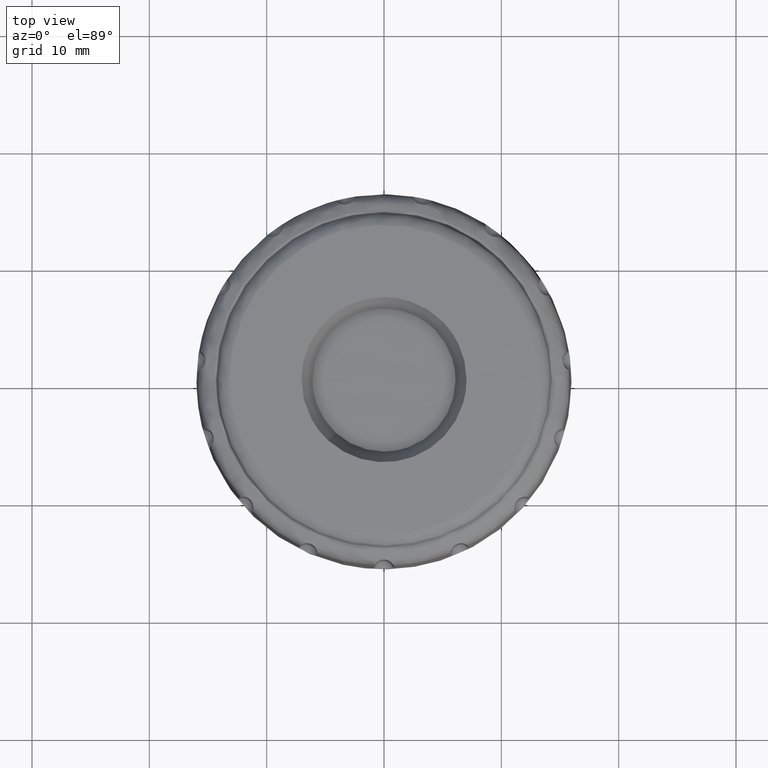
[diagram: clean part render]
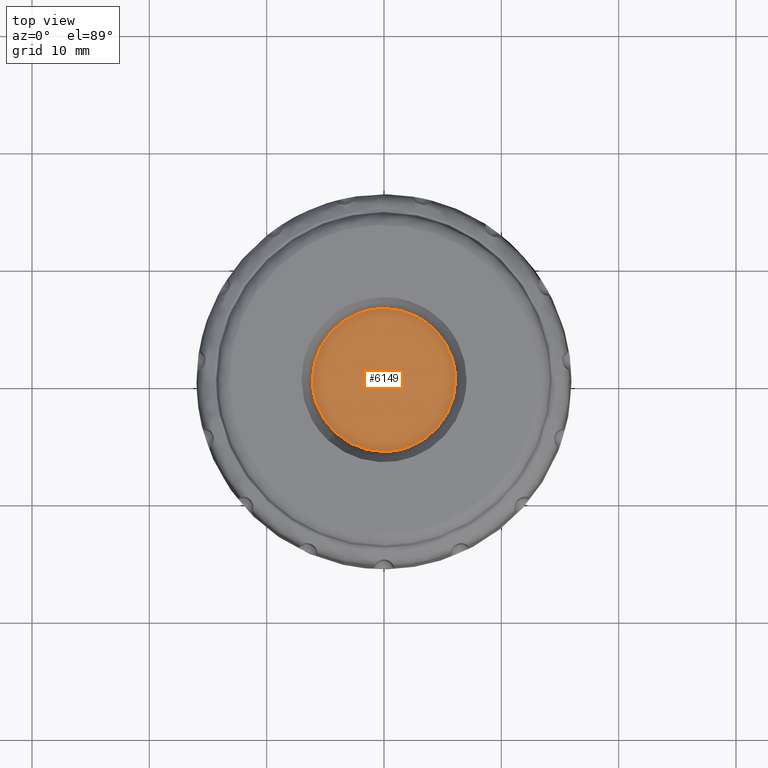
[diagram: same view with one face highlighted and labeled with its STEP entity id]
A machine part, top view. The second image highlights one B-rep face of the part: STEP entity #6149.
In plain terms, the highlighted face is a freeform B-spline surface patch.
Its self-contained STEP definition (entity closure, byte-faithful):
#996=CARTESIAN_POINT('',(0.000000544732082,6.099999999999977,16.0));
#997=VERTEX_POINT('',#996);
#998=CARTESIAN_POINT('',(4.371571046610871,4.254335266510307,16.000000053344341));
#999=VERTEX_POINT('',#998);
#1000=CARTESIAN_POINT('',(0.000000544732082,6.099999999999977,16.0));
#1001=CARTESIAN_POINT('',(0.317306817955240,6.100017396246842,16.000000003871978));
#1002=CARTESIAN_POINT('',(0.977300971990490,6.048395578612732,16.000000011925529));
#1003=CARTESIAN_POINT('',(2.028880118336133,5.790746509621759,16.000000024757540));
#1004=CARTESIAN_POINT('',(2.934533801225861,5.378048041231075,16.000000035808839));
#1005=CARTESIAN_POINT('',(3.739045089724609,4.843075371251124,16.000000045625821));
#1006=CARTESIAN_POINT('',(4.150285624364259,4.481748081975704,16.000000050644189));
#1007=CARTESIAN_POINT('',(4.371571046610871,4.254335266510307,16.000000053344341));
#1008=B_SPLINE_CURVE_WITH_KNOTS('',3,(#1000,#1001,#1002,#1003,#1004,#1005,#1006,#1007),.UNSPECIFIED.,.F.,.U.,(4,1,1,1,1,4),(7.069521E-009,0.951919351928479,1.979997152454806,3.236530785587537,3.921917649105443,4.873836993968570),.UNSPECIFIED.);
#1009=EDGE_CURVE('',#997,#999,#1008,.T.);
#1064=CARTESIAN_POINT('',(-4.121100375471980,-4.497391873512335,16.000000053160989));
#1065=VERTEX_POINT('',#1064);
#1071=CARTESIAN_POINT('',(-6.100000000000001,0.0,16.0));
#1072=VERTEX_POINT('',#1071);
#1073=CARTESIAN_POINT('',(-4.121100375471980,-4.497391873512335,16.000000053160989));
#1074=CARTESIAN_POINT('',(-4.451286150794746,-4.194942100465733,16.000000049585910));
#1075=CARTESIAN_POINT('',(-4.939819312073575,-3.636513539489959,16.000000042985061));
#1076=CARTESIAN_POINT('',(-5.528013990667348,-2.649867034743668,16.000000031322411));
#1077=CARTESIAN_POINT('',(-5.845349873799461,-1.821790940317680,16.000000021534550));
#1078=CARTESIAN_POINT('',(-6.052638108695825,-0.895513463536085,16.000000010585119));
#1079=CARTESIAN_POINT('',(-6.100036943719201,-0.355579314394943,16.000000004203230));
#1080=CARTESIAN_POINT('',(-6.100000000000001,0.0,16.0));
#1081=B_SPLINE_CURVE_WITH_KNOTS('',3,(#1073,#1074,#1075,#1076,#1077,#1078,#1079,#1080),.UNSPECIFIED.,.F.,.U.,(4,1,1,1,1,4),(7.481709E-009,1.343292821893735,2.212483516270661,3.437247619037943,3.990369689342958,5.057100413576769),.UNSPECIFIED.);
#1082=EDGE_CURVE('',#1065,#1072,#1081,.T.);
#1084=CARTESIAN_POINT('',(-6.100000000000001,0.0,16.0));
#1085=CARTESIAN_POINT('',(-6.100066120302413,0.424201010150989,16.000000000000039));
#1086=CARTESIAN_POINT('',(-6.033349294765704,1.060465092081808,15.999999999999959));
#1087=CARTESIAN_POINT('',(-5.801396340264795,1.929569038616459,16.000000000000039));
#1088=CARTESIAN_POINT('',(-5.474380560533725,2.754815936909075,16.000000000000028));
#1089=CARTESIAN_POINT('',(-5.020775163868374,3.506356827088278,15.999999999999901));
#1090=CARTESIAN_POINT('',(-4.445919662796353,4.198049119633654,16.000000000000110));
#1091=CARTESIAN_POINT('',(-3.946261361850772,4.670857348886780,15.999999999999980));
#1092=CARTESIAN_POINT('',(-3.253982643129390,5.184319166683569,16.000000000000110));
#1093=CARTESIAN_POINT('',(-2.483045981960314,5.602500393270598,15.999999999999989));
#1094=CARTESIAN_POINT('',(-1.678603141910490,5.879209479135122,16.000000000000050));
#1095=CARTESIAN_POINT('',(-0.873334105508828,6.054855584259400,15.999999999999901));
#1096=CARTESIAN_POINT('',(-0.349338842669102,6.100032576835511,16.000000000000089));
#1097=CARTESIAN_POINT('',(0.000000544732082,6.099999999999977,16.0));
#1098=B_SPLINE_CURVE_WITH_KNOTS('',3,(#1084,#1085,#1086,#1087,#1088,#1089,#1090,#1091,#1092,#1093,#1094,#1095,#1096,#1097),.UNSPECIFIED.,.F.,.U.,(4,1,1,1,1,1,1,1,1,1,1,4),(0.000000025952641,1.272584654546279,1.908888152187478,2.694902549736099,3.930075003582942,4.528937153222035,5.389793103503590,5.988661937849136,7.111545831382668,8.009849057533202,8.533860651899110,9.581872931623693),.UNSPECIFIED.);
#1099=EDGE_CURVE('',#1072,#997,#1098,.T.);
#1122=CARTESIAN_POINT('',(6.100000000000001,0.0,16.0));
#1123=VERTEX_POINT('',#1122);
#1124=CARTESIAN_POINT('',(4.371571046610871,4.254335266510307,16.000000053344341));
#1125=CARTESIAN_POINT('',(4.619570866755620,3.999548993894480,16.000000050149609));
#1126=CARTESIAN_POINT('',(5.016337445822252,3.513179626198007,16.000000044051131));
#1127=CARTESIAN_POINT('',(5.507596106861514,2.675953752669788,16.000000033553299));
#1128=CARTESIAN_POINT('',(5.845220949317996,1.830351690585885,16.000000022950498));
#1129=CARTESIAN_POINT('',(6.054624983376892,0.907273413522948,16.000000011376070));
#1130=CARTESIAN_POINT('',(6.100016687207049,0.306512936313879,16.000000003843439));
#1131=CARTESIAN_POINT('',(6.100000000000001,0.0,16.0));
#1132=B_SPLINE_CURVE_WITH_KNOTS('',3,(#1124,#1125,#1126,#1127,#1128,#1129,#1130,#1131),.UNSPECIFIED.,.F.,.U.,(4,1,1,1,1,4),(6.332686E-009,1.066663591305887,1.875862225732087,2.905736024943709,3.788497578508151,4.708035226571100),.UNSPECIFIED.);
#1133=EDGE_CURVE('',#999,#1123,#1132,.T.);
#1135=CARTESIAN_POINT('',(-0.000000544732168,-6.099999999999976,16.0));
#1136=VERTEX_POINT('',#1135);
#1137=CARTESIAN_POINT('',(6.100000000000001,0.0,16.0));
#1138=CARTESIAN_POINT('',(6.100102830047706,-0.486588747884284,16.000000000000011));
#1139=CARTESIAN_POINT('',(6.006935927685975,-1.260061444262342,16.000000000000021));
#1140=CARTESIAN_POINT('',(5.659846769013012,-2.344046472241251,15.999999999999980));
#1141=CARTESIAN_POINT('',(5.246227822145024,-3.159531172287847,16.000000000000270));
#1142=CARTESIAN_POINT('',(4.684677068447688,-3.941455419717862,15.999999999999909));
#1143=CARTESIAN_POINT('',(3.961328050681485,-4.687448250585676,15.999999999999879));
#1144=CARTESIAN_POINT('',(3.097679006606329,-5.291714135957634,16.000000000000149));
#1145=CARTESIAN_POINT('',(2.088674816006703,-5.761368321569910,16.000000000000242));
#1146=CARTESIAN_POINT('',(1.097920859023283,-6.035555961001839,15.999999999999680));
#1147=CARTESIAN_POINT('',(0.349335705349788,-6.100019372767827,16.0));
#1148=CARTESIAN_POINT('',(-0.000000544732168,-6.099999999999976,16.0));
#1149=B_SPLINE_CURVE_WITH_KNOTS('',3,(#1137,#1138,#1139,#1140,#1141,#1142,#1143,#1144,#1145,#1146,#1147,#1148),.UNSPECIFIED.,.F.,.U.,(4,1,1,1,1,1,1,1,1,4),(0.000000025967228,1.459733407121396,2.320609559524785,3.406062999268243,4.192080385396681,5.202644037815333,6.512674665506825,7.336122254547909,8.533860651900385,9.581872931623702),.UNSPECIFIED.);
#1150=EDGE_CURVE('',#1123,#1136,#1149,.T.);
#1152=CARTESIAN_POINT('',(-0.000000544732168,-6.099999999999976,16.0));
#1153=CARTESIAN_POINT('',(-0.353499382698060,-6.100032131203918,16.000000004560029));
#1154=CARTESIAN_POINT('',(-0.977999380046692,-6.045550931745984,16.000000012615910));
#1155=CARTESIAN_POINT('',(-1.964392287855730,-5.803677476992683,16.000000025340078));
#1156=CARTESIAN_POINT('',(-3.031636869039743,-5.349037360266875,16.000000039107402));
#1157=CARTESIAN_POINT('',(-3.756288738074190,-4.831817886965549,16.000000048454972));
#1158=CARTESIAN_POINT('',(-4.121100375471980,-4.497391873512335,16.000000053160989));
#1159=B_SPLINE_CURVE_WITH_KNOTS('',3,(#1152,#1153,#1154,#1155,#1156,#1157,#1158),.UNSPECIFIED.,.F.,.U.,(4,1,1,1,4),(5.528865E-009,1.060493100632101,1.873539619232859,3.040080728352191,4.524771932197515),.UNSPECIFIED.);
#1160=EDGE_CURVE('',#1136,#1065,#1159,.T.);
#6136=CARTESIAN_POINT('',(-6.709389861829163,-6.709389861829134,16.0));
#6137=CARTESIAN_POINT('',(6.709390298135160,-6.709389861829134,16.0));
#6138=CARTESIAN_POINT('',(-6.709389861829163,6.709390298135134,16.0));
#6139=CARTESIAN_POINT('',(6.709390298135160,6.709390298135134,16.0));
#6140=B_SPLINE_SURFACE_WITH_KNOTS('',1,1,((#6136,#6138),(#6137,#6139)),.UNSPECIFIED.,.F.,.F.,.U.,(2,2),(2,2),(0.0,13.418780159964321),(0.0,13.418780159964269),.UNSPECIFIED.);
#6141=ORIENTED_EDGE('',*,*,#1082,.F.);
#6142=ORIENTED_EDGE('',*,*,#1160,.F.);
#6143=ORIENTED_EDGE('',*,*,#1150,.F.);
#6144=ORIENTED_EDGE('',*,*,#1133,.F.);
#6145=ORIENTED_EDGE('',*,*,#1009,.F.);
#6146=ORIENTED_EDGE('',*,*,#1099,.F.);
#6147=EDGE_LOOP('',(#6141,#6142,#6143,#6144,#6145,#6146));
#6148=FACE_OUTER_BOUND('',#6147,.T.);
#6149=ADVANCED_FACE('',(#6148),#6140,.T.);